MODEL slx_a8b4939c8067
KIND model
CONFIG AbsTol = auto
CONFIG EnableMultiTasking = off
CONFIG FixedStep = 0.01
CONFIG InitFcn = % Run simulation parameters\nquanser_AERO_sim_params;
CONFIG MaxStep = auto
CONFIG MinStep = auto
CONFIG RelTol = 1e-3
CONFIG SampleTimeConstraint = Unconstrained
CONFIG SolverName = ode45
CONFIG StartTime = 0.0
CONFIG StopTime = sim_time
WORKSPACE source: mxarray member
WORKSPACE A_act = [-7241.37931034 5830.87140985 -36.2068965517 -1.38830271663]
WORKSPACE B_act = [862.068965517 0]
WORKSPACE B_p = 0.005
WORKSPACE B_y = 0.005
WORKSPACE C_act = [1 0 0 1]
WORKSPACE C_meas = [0 0.0051]
WORKSPACE D_act = [0 0]
WORKSPACE D_t = 0.158
WORKSPACE J_eq = 7.20304e-06
WORKSPACE J_h = 3.04e-09
WORKSPACE J_m = 4e-06
WORKSPACE J_p = 7.2e-06
WORKSPACE J_yy = 0.02
WORKSPACE J_zz = 0.01
WORKSPACE K_act = 550
WORKSPACE L_m = 0.00116
WORKSPACE M_b = 1.15
WORKSPACE R_m = 8.4
WORKSPACE Sig: Simulink.Signal (value not decoded)
WORKSPACE Sig1: Simulink.Signal (value not decoded)
WORKSPACE Sig2: Simulink.Signal (value not decoded)
WORKSPACE Sig3: Simulink.Signal (value not decoded)
WORKSPACE Sig4: Simulink.Signal (value not decoded)
WORKSPACE T_s = 0.01
WORKSPACE controller: object (value not decoded)
WORKSPACE den = [1 7242.76761306 221170.984512]
WORKSPACE g = 9.81
WORKSPACE k = 25635.7277502
WORKSPACE k_d = 1e-05
WORKSPACE k_m = 0.042
WORKSPACE k_py = 0.05
WORKSPACE k_t = 0.042
WORKSPACE k_w = 0.0001088
WORKSPACE num = [0 0 25635.7277502]
WORKSPACE p = [-7212.10096188 -30.6666511854]
WORKSPACE slew = 1000
WORKSPACE smiData: object (value not decoded)
WORKSPACE sys_act: object (value not decoded)
WORKSPACE y_g = 0
WORKSPACE z = []
WORKSPACE z_g = 0.0071
BLOCK [Demux] Demux
  Ports = [1, 4]
BLOCK [Step] Motor 0 Step Input
  After = 20
  SampleTime = 0
BLOCK [Step] Motor 1 Step Input
  After = 10
  SampleTime = 0
BLOCK [Mux] Mux
  DisplayOption = bar
  Inputs = 2
  Ports = [2, 1]
BLOCK [Scope] Pitch
  Floating = off
  NumInputPorts = 1
  Ports = [1]
  ScopeSpecificationString = Simulink.scopes.TimeScopeBlockCfg('CurrentConfiguration', extmgr.ConfigurationSet(extmgr.Configuration('Core','General UI',true),extmgr.Configuration('Core','Source UI',true),extmgr.Configuration('Sources','WiredSimulink',true,'DataLoggingVariableName','ScopeData1'),extmgr.Configuration('Visuals','Time Domain',true,'SerializedDisplays',{struct('MinYLimReal','-13.21897','MaxYLimReal','18.92469','YL...<+1573ch>
BLOCK [Scope] Pitch Angular Velocity
  Floating = off
  NumInputPorts = 1
  Ports = [1]
  ScopeSpecificationString = Simulink.scopes.TimeScopeBlockCfg('CurrentConfiguration', extmgr.ConfigurationSet(extmgr.Configuration('Core','General UI',true),extmgr.Configuration('Core','Source UI',true),extmgr.Configuration('Sources','WiredSimulink',true,'DataLoggingVariableName','ScopeData2'),extmgr.Configuration('Visuals','Time Domain',true,'SerializedDisplays',{struct('MinYLimReal','-8.11885','MaxYLimReal','11.00836','YLa...<+1571ch>
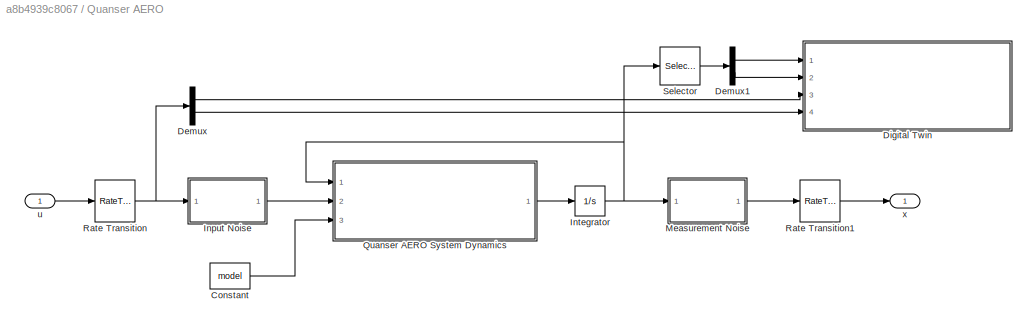
BLOCK [SubSystem] Quanser AERO
  Ports = [1, 1]
  RequestExecContextInheritance = off
  TreatAsAtomicUnit = on
BLOCK [Constant] Quanser AERO/Constant
  Value = model
BLOCK [Demux] Quanser AERO/Demux
  Outputs = 2
  Ports = [1, 2]
BLOCK [Demux] Quanser AERO/Demux1
  Outputs = 2
  Ports = [1, 2]
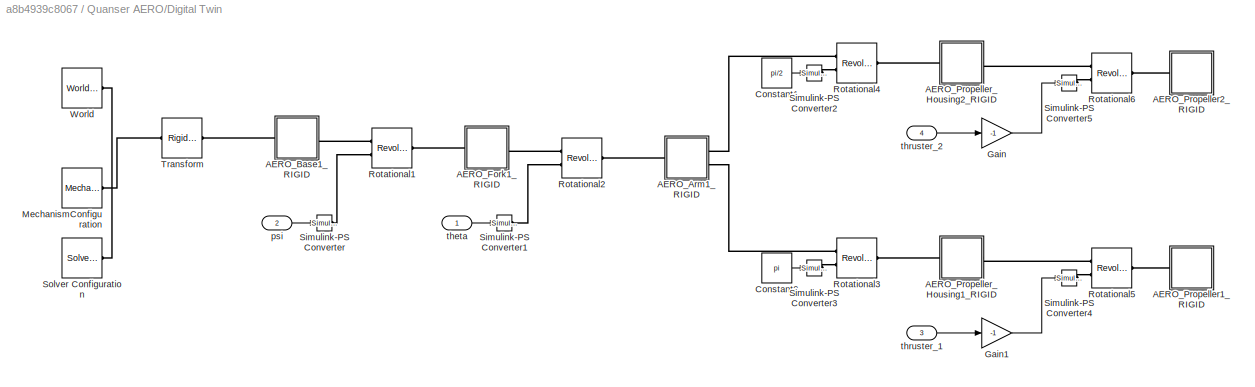
BLOCK [SubSystem] Quanser AERO/Digital Twin
  Ports = [4]
  RequestExecContextInheritance = off
BLOCK [SubSystem] Quanser AERO/Digital Twin/AERO_Arm1_RIGID
  Ports = [0, 0, 0, 0, 0, 1, 2]
  RequestExecContextInheritance = off
BLOCK [PMIOPort] Quanser AERO/Digital Twin/AERO_Arm1_RIGID/F
  Side = Left
BLOCK [PMIOPort] Quanser AERO/Digital Twin/AERO_Arm1_RIGID/F1
  Port = 3
  Side = Right
BLOCK [PMIOPort] Quanser AERO/Digital Twin/AERO_Arm1_RIGID/F2
  Port = 2
  Side = Right
BLOCK [Reference] Quanser AERO/Digital Twin/AERO_Arm1_RIGID/ReferenceFrame  REF=sm_lib/Frames and
Transforms/Reference
Frame
  Ports = [0, 0, 0, 0, 0, 0, 1]
  SourceBlock = sm_lib/Frames and\nTransforms/Reference\nFrame
  SourceProductBaseCode = MS
  SourceType = Reference\nFrame
BLOCK [Reference] Quanser AERO/Digital Twin/AERO_Arm1_RIGID/Solid  REF=sm_lib/Body Elements/File Solid
  Ports = [0, 0, 0, 0, 0, 0, 1]
  SourceBlock = sm_lib/Body Elements/File Solid
  SourceProductBaseCode = MS
  SourceType = File Solid
BLOCK [Reference] Quanser AERO/Digital Twin/AERO_Arm1_RIGID/Transform  REF=sm_lib/Frames and
Transforms/Rigid
Transform
  Ports = [0, 0, 0, 0, 0, 1, 1]
  SourceBlock = sm_lib/Frames and\nTransforms/Rigid\nTransform
  SourceProductBaseCode = MS
  SourceType = Rigid\nTransform
BLOCK [Reference] Quanser AERO/Digital Twin/AERO_Arm1_RIGID/Transform1  REF=sm_lib/Frames and
Transforms/Rigid
Transform
  Ports = [0, 0, 0, 0, 0, 1, 1]
  SourceBlock = sm_lib/Frames and\nTransforms/Rigid\nTransform
  SourceProductBaseCode = MS
  SourceType = Rigid\nTransform
BLOCK [Reference] Quanser AERO/Digital Twin/AERO_Arm1_RIGID/Transform2  REF=sm_lib/Frames and
Transforms/Rigid
Transform
  Ports = [0, 0, 0, 0, 0, 1, 1]
  SourceBlock = sm_lib/Frames and\nTransforms/Rigid\nTransform
  SourceProductBaseCode = MS
  SourceType = Rigid\nTransform
BLOCK [SubSystem] Quanser AERO/Digital Twin/AERO_Base1_RIGID
  Ports = [0, 0, 0, 0, 0, 1, 1]
  RequestExecContextInheritance = off
BLOCK [PMIOPort] Quanser AERO/Digital Twin/AERO_Base1_RIGID/F
  Port = 2
  Side = Right
BLOCK [PMIOPort] Quanser AERO/Digital Twin/AERO_Base1_RIGID/F1
  Side = Left
BLOCK [Reference] Quanser AERO/Digital Twin/AERO_Base1_RIGID/ReferenceFrame  REF=sm_lib/Frames and
Transforms/Reference
Frame
  Ports = [0, 0, 0, 0, 0, 0, 1]
  SourceBlock = sm_lib/Frames and\nTransforms/Reference\nFrame
  SourceProductBaseCode = MS
  SourceType = Reference\nFrame
BLOCK [Reference] Quanser AERO/Digital Twin/AERO_Base1_RIGID/Solid  REF=sm_lib/Body Elements/File Solid
  Ports = [0, 0, 0, 0, 0, 0, 1]
  SourceBlock = sm_lib/Body Elements/File Solid
  SourceProductBaseCode = MS
  SourceType = File Solid
BLOCK [Reference] Quanser AERO/Digital Twin/AERO_Base1_RIGID/Transform  REF=sm_lib/Frames and
Transforms/Rigid
Transform
  Ports = [0, 0, 0, 0, 0, 1, 1]
  SourceBlock = sm_lib/Frames and\nTransforms/Rigid\nTransform
  SourceProductBaseCode = MS
  SourceType = Rigid\nTransform
BLOCK [SubSystem] Quanser AERO/Digital Twin/AERO_Fork1_RIGID
  Ports = [0, 0, 0, 0, 0, 1, 1]
  RequestExecContextInheritance = off
BLOCK [PMIOPort] Quanser AERO/Digital Twin/AERO_Fork1_RIGID/F
  Port = 2
  Side = Right
BLOCK [PMIOPort] Quanser AERO/Digital Twin/AERO_Fork1_RIGID/F1
  Side = Left
BLOCK [Reference] Quanser AERO/Digital Twin/AERO_Fork1_RIGID/ReferenceFrame  REF=sm_lib/Frames and
Transforms/Reference
Frame
  Ports = [0, 0, 0, 0, 0, 0, 1]
  SourceBlock = sm_lib/Frames and\nTransforms/Reference\nFrame
  SourceProductBaseCode = MS
  SourceType = Reference\nFrame
BLOCK [Reference] Quanser AERO/Digital Twin/AERO_Fork1_RIGID/Solid  REF=sm_lib/Body Elements/File Solid
  Ports = [0, 0, 0, 0, 0, 0, 1]
  SourceBlock = sm_lib/Body Elements/File Solid
  SourceProductBaseCode = MS
  SourceType = File Solid
BLOCK [Reference] Quanser AERO/Digital Twin/AERO_Fork1_RIGID/Transform  REF=sm_lib/Frames and
Transforms/Rigid
Transform
  Ports = [0, 0, 0, 0, 0, 1, 1]
  SourceBlock = sm_lib/Frames and\nTransforms/Rigid\nTransform
  SourceProductBaseCode = MS
  SourceType = Rigid\nTransform
BLOCK [Reference] Quanser AERO/Digital Twin/AERO_Fork1_RIGID/Transform1  REF=sm_lib/Frames and
Transforms/Rigid
Transform
  Ports = [0, 0, 0, 0, 0, 1, 1]
  SourceBlock = sm_lib/Frames and\nTransforms/Rigid\nTransform
  SourceProductBaseCode = MS
  SourceType = Rigid\nTransform
BLOCK [SubSystem] Quanser AERO/Digital Twin/AERO_Propeller1_RIGID
  Ports = [0, 0, 0, 0, 0, 1]
  RequestExecContextInheritance = off
BLOCK [PMIOPort] Quanser AERO/Digital Twin/AERO_Propeller1_RIGID/F
  Side = Left
BLOCK [Reference] Quanser AERO/Digital Twin/AERO_Propeller1_RIGID/ReferenceFrame  REF=sm_lib/Frames and
Transforms/Reference
Frame
  Ports = [0, 0, 0, 0, 0, 0, 1]
  SourceBlock = sm_lib/Frames and\nTransforms/Reference\nFrame
  SourceProductBaseCode = MS
  SourceType = Reference\nFrame
BLOCK [Reference] Quanser AERO/Digital Twin/AERO_Propeller1_RIGID/Solid  REF=sm_lib/Body Elements/File Solid
  Ports = [0, 0, 0, 0, 0, 0, 1]
  SourceBlock = sm_lib/Body Elements/File Solid
  SourceProductBaseCode = MS
  SourceType = File Solid
BLOCK [Reference] Quanser AERO/Digital Twin/AERO_Propeller1_RIGID/Transform  REF=sm_lib/Frames and
Transforms/Rigid
Transform
  Ports = [0, 0, 0, 0, 0, 1, 1]
  SourceBlock = sm_lib/Frames and\nTransforms/Rigid\nTransform
  SourceProductBaseCode = MS
  SourceType = Rigid\nTransform
BLOCK [SubSystem] Quanser AERO/Digital Twin/AERO_Propeller2_RIGID
  Ports = [0, 0, 0, 0, 0, 1]
  RequestExecContextInheritance = off
BLOCK [PMIOPort] Quanser AERO/Digital Twin/AERO_Propeller2_RIGID/F
  Side = Left
BLOCK [Reference] Quanser AERO/Digital Twin/AERO_Propeller2_RIGID/ReferenceFrame  REF=sm_lib/Frames and
Transforms/Reference
Frame
  Ports = [0, 0, 0, 0, 0, 0, 1]
  SourceBlock = sm_lib/Frames and\nTransforms/Reference\nFrame
  SourceProductBaseCode = MS
  SourceType = Reference\nFrame
BLOCK [Reference] Quanser AERO/Digital Twin/AERO_Propeller2_RIGID/Solid  REF=sm_lib/Body Elements/File Solid
  Ports = [0, 0, 0, 0, 0, 0, 1]
  SourceBlock = sm_lib/Body Elements/File Solid
  SourceProductBaseCode = MS
  SourceType = File Solid
BLOCK [Reference] Quanser AERO/Digital Twin/AERO_Propeller2_RIGID/Transform  REF=sm_lib/Frames and
Transforms/Rigid
Transform
  Ports = [0, 0, 0, 0, 0, 1, 1]
  SourceBlock = sm_lib/Frames and\nTransforms/Rigid\nTransform
  SourceProductBaseCode = MS
  SourceType = Rigid\nTransform
BLOCK [SubSystem] Quanser AERO/Digital Twin/AERO_Propeller_Housing1_RIGID
  Ports = [0, 0, 0, 0, 0, 1, 1]
  RequestExecContextInheritance = off
BLOCK [PMIOPort] Quanser AERO/Digital Twin/AERO_Propeller_Housing1_RIGID/F
  Side = Left
BLOCK [PMIOPort] Quanser AERO/Digital Twin/AERO_Propeller_Housing1_RIGID/F1
  Port = 2
  Side = Right
BLOCK [Reference] Quanser AERO/Digital Twin/AERO_Propeller_Housing1_RIGID/ReferenceFrame  REF=sm_lib/Frames and
Transforms/Reference
Frame
  Ports = [0, 0, 0, 0, 0, 0, 1]
  SourceBlock = sm_lib/Frames and\nTransforms/Reference\nFrame
  SourceProductBaseCode = MS
  SourceType = Reference\nFrame
BLOCK [Reference] Quanser AERO/Digital Twin/AERO_Propeller_Housing1_RIGID/Solid  REF=sm_lib/Body Elements/File Solid
  Ports = [0, 0, 0, 0, 0, 0, 1]
  SourceBlock = sm_lib/Body Elements/File Solid
  SourceProductBaseCode = MS
  SourceType = File Solid
BLOCK [Reference] Quanser AERO/Digital Twin/AERO_Propeller_Housing1_RIGID/Transform  REF=sm_lib/Frames and
Transforms/Rigid
Transform
  Ports = [0, 0, 0, 0, 0, 1, 1]
  SourceBlock = sm_lib/Frames and\nTransforms/Rigid\nTransform
  SourceProductBaseCode = MS
  SourceType = Rigid\nTransform
BLOCK [Reference] Quanser AERO/Digital Twin/AERO_Propeller_Housing1_RIGID/Transform1  REF=sm_lib/Frames and
Transforms/Rigid
Transform
  Ports = [0, 0, 0, 0, 0, 1, 1]
  SourceBlock = sm_lib/Frames and\nTransforms/Rigid\nTransform
  SourceProductBaseCode = MS
  SourceType = Rigid\nTransform
BLOCK [SubSystem] Quanser AERO/Digital Twin/AERO_Propeller_Housing2_RIGID
  Ports = [0, 0, 0, 0, 0, 1, 1]
  RequestExecContextInheritance = off
BLOCK [PMIOPort] Quanser AERO/Digital Twin/AERO_Propeller_Housing2_RIGID/F
  Side = Left
BLOCK [PMIOPort] Quanser AERO/Digital Twin/AERO_Propeller_Housing2_RIGID/F1
  Port = 2
  Side = Right
BLOCK [Reference] Quanser AERO/Digital Twin/AERO_Propeller_Housing2_RIGID/ReferenceFrame  REF=sm_lib/Frames and
Transforms/Reference
Frame
  Ports = [0, 0, 0, 0, 0, 0, 1]
  SourceBlock = sm_lib/Frames and\nTransforms/Reference\nFrame
  SourceProductBaseCode = MS
  SourceType = Reference\nFrame
BLOCK [Reference] Quanser AERO/Digital Twin/AERO_Propeller_Housing2_RIGID/Solid  REF=sm_lib/Body Elements/File Solid
  Ports = [0, 0, 0, 0, 0, 0, 1]
  SourceBlock = sm_lib/Body Elements/File Solid
  SourceProductBaseCode = MS
  SourceType = File Solid
BLOCK [Reference] Quanser AERO/Digital Twin/AERO_Propeller_Housing2_RIGID/Transform  REF=sm_lib/Frames and
Transforms/Rigid
Transform
  Ports = [0, 0, 0, 0, 0, 1, 1]
  SourceBlock = sm_lib/Frames and\nTransforms/Rigid\nTransform
  SourceProductBaseCode = MS
  SourceType = Rigid\nTransform
BLOCK [Reference] Quanser AERO/Digital Twin/AERO_Propeller_Housing2_RIGID/Transform1  REF=sm_lib/Frames and
Transforms/Rigid
Transform
  Ports = [0, 0, 0, 0, 0, 1, 1]
  SourceBlock = sm_lib/Frames and\nTransforms/Rigid\nTransform
  SourceProductBaseCode = MS
  SourceType = Rigid\nTransform
BLOCK [Constant] Quanser AERO/Digital Twin/Constant1
  Value = pi/2
BLOCK [Constant] Quanser AERO/Digital Twin/Constant2
  Value = pi
BLOCK [Gain] Quanser AERO/Digital Twin/Gain
  Gain = -1
BLOCK [Gain] Quanser AERO/Digital Twin/Gain1
  Gain = -1
BLOCK [Reference] Quanser AERO/Digital Twin/MechanismConfiguration  REF=sm_lib/Utilities/Mechanism
Configuration
  Ports = [0, 0, 0, 0, 0, 0, 1]
  SourceBlock = sm_lib/Utilities/Mechanism\nConfiguration
  SourceProductBaseCode = MS
  SourceType = Mechanism\nConfiguration
BLOCK [Reference] Quanser AERO/Digital Twin/Rotational1  REF=sm_lib/Joints/Revolute Joint
  Ports = [0, 0, 0, 0, 0, 2, 1]
  SourceBlock = sm_lib/Joints/Revolute Joint
  SourceProductBaseCode = MS
  SourceType = Revolute Joint
BLOCK [Reference] Quanser AERO/Digital Twin/Rotational2  REF=sm_lib/Joints/Revolute Joint
  Ports = [0, 0, 0, 0, 0, 2, 1]
  SourceBlock = sm_lib/Joints/Revolute Joint
  SourceProductBaseCode = MS
  SourceType = Revolute Joint
BLOCK [Reference] Quanser AERO/Digital Twin/Rotational3  REF=sm_lib/Joints/Revolute Joint
  Ports = [0, 0, 0, 0, 0, 2, 1]
  SourceBlock = sm_lib/Joints/Revolute Joint
  SourceProductBaseCode = MS
  SourceType = Revolute Joint
BLOCK [Reference] Quanser AERO/Digital Twin/Rotational4  REF=sm_lib/Joints/Revolute Joint
  Ports = [0, 0, 0, 0, 0, 2, 1]
  SourceBlock = sm_lib/Joints/Revolute Joint
  SourceProductBaseCode = MS
  SourceType = Revolute Joint
BLOCK [Reference] Quanser AERO/Digital Twin/Rotational5  REF=sm_lib/Joints/Revolute Joint
  Ports = [0, 0, 0, 0, 0, 2, 1]
  SourceBlock = sm_lib/Joints/Revolute Joint
  SourceProductBaseCode = MS
  SourceType = Revolute Joint
BLOCK [Reference] Quanser AERO/Digital Twin/Rotational6  REF=sm_lib/Joints/Revolute Joint
  Ports = [0, 0, 0, 0, 0, 2, 1]
  SourceBlock = sm_lib/Joints/Revolute Joint
  SourceProductBaseCode = MS
  SourceType = Revolute Joint
BLOCK [Reference] Quanser AERO/Digital Twin/Simulink-PS Converter  REF=nesl_utility/Simulink-PS
Converter
  Ports = [1, 0, 0, 0, 0, 0, 1]
  SourceBlock = nesl_utility/Simulink-PS\nConverter
  SourceProductBaseCode = PW,SS
  SourceType = Simulink-PS\nConverter
BLOCK [Reference] Quanser AERO/Digital Twin/Simulink-PS Converter1  REF=nesl_utility/Simulink-PS
Converter
  Ports = [1, 0, 0, 0, 0, 0, 1]
  SourceBlock = nesl_utility/Simulink-PS\nConverter
  SourceProductBaseCode = PW,SS
  SourceType = Simulink-PS\nConverter
BLOCK [Reference] Quanser AERO/Digital Twin/Simulink-PS Converter2  REF=nesl_utility/Simulink-PS
Converter
  Ports = [1, 0, 0, 0, 0, 0, 1]
  SourceBlock = nesl_utility/Simulink-PS\nConverter
  SourceProductBaseCode = PW,SS
  SourceType = Simulink-PS\nConverter
BLOCK [Reference] Quanser AERO/Digital Twin/Simulink-PS Converter3  REF=nesl_utility/Simulink-PS
Converter
  Ports = [1, 0, 0, 0, 0, 0, 1]
  SourceBlock = nesl_utility/Simulink-PS\nConverter
  SourceProductBaseCode = PW,SS
  SourceType = Simulink-PS\nConverter
BLOCK [Reference] Quanser AERO/Digital Twin/Simulink-PS Converter4  REF=nesl_utility/Simulink-PS
Converter
  Ports = [1, 0, 0, 0, 0, 0, 1]
  SourceBlock = nesl_utility/Simulink-PS\nConverter
  SourceProductBaseCode = PW,SS
  SourceType = Simulink-PS\nConverter
BLOCK [Reference] Quanser AERO/Digital Twin/Simulink-PS Converter5  REF=nesl_utility/Simulink-PS
Converter
  Ports = [1, 0, 0, 0, 0, 0, 1]
  SourceBlock = nesl_utility/Simulink-PS\nConverter
  SourceProductBaseCode = PW,SS
  SourceType = Simulink-PS\nConverter
BLOCK [Reference] Quanser AERO/Digital Twin/Solver Configuration  REF=nesl_utility/Solver
Configuration
  Ports = [0, 0, 0, 0, 0, 0, 1]
  SourceBlock = nesl_utility/Solver\nConfiguration
  SourceProductBaseCode = PW,SS
  SourceType = Solver\nConfiguration
BLOCK [Reference] Quanser AERO/Digital Twin/Transform  REF=sm_lib/Frames and
Transforms/Rigid
Transform
  Ports = [0, 0, 0, 0, 0, 1, 1]
  SourceBlock = sm_lib/Frames and\nTransforms/Rigid\nTransform
  SourceProductBaseCode = MS
  SourceType = Rigid\nTransform
BLOCK [Reference] Quanser AERO/Digital Twin/World  REF=sm_lib/Frames and
Transforms/World Frame
  Ports = [0, 0, 0, 0, 0, 0, 1]
  SourceBlock = sm_lib/Frames and\nTransforms/World Frame
  SourceProductBaseCode = MS
  SourceType = World Frame
BLOCK [Inport] Quanser AERO/Digital Twin/psi
  Port = 2
BLOCK [Inport] Quanser AERO/Digital Twin/theta
BLOCK [Inport] Quanser AERO/Digital Twin/thruster_1
  Port = 3
BLOCK [Inport] Quanser AERO/Digital Twin/thruster_2
  Port = 4
BLOCK [SubSystem] Quanser AERO/Input Noise
  Ports = [1, 1]
  RequestExecContextInheritance = off
  TreatAsAtomicUnit = on
BLOCK [Demux] Quanser AERO/Input Noise/Demux
  Outputs = 2
  Ports = [1, 2]
BLOCK [Reference] Quanser AERO/Input Noise/Motor 0 Noise  REF=simulink/Sources/Band-Limited
White Noise
  Ports = [0, 1]
  SourceBlock = simulink/Sources/Band-Limited\nWhite Noise
  SourceProductBaseCode = SL
  SourceType = Band-Limited White Noise.
BLOCK [Reference] Quanser AERO/Input Noise/Motor 1 Noise  REF=simulink/Sources/Band-Limited
White Noise
  Ports = [0, 1]
  SourceBlock = simulink/Sources/Band-Limited\nWhite Noise
  SourceProductBaseCode = SL
  SourceType = Band-Limited White Noise.
BLOCK [Mux] Quanser AERO/Input Noise/Mux
  DisplayOption = bar
  Inputs = 2
  Ports = [2, 1]
BLOCK [Sum] Quanser AERO/Input Noise/Sum
  Inputs = |++
  Ports = [2, 1]
BLOCK [Sum] Quanser AERO/Input Noise/Sum1
  Inputs = ++|
  Ports = [2, 1]
BLOCK [Inport] Quanser AERO/Input Noise/u
BLOCK [Outport] Quanser AERO/Input Noise/u_noise
  VectorParamsAs1DForOutWhenUnconnected = off
BLOCK [Integrator] Quanser AERO/Integrator
  InitialCondition = [ini_cond.theta; ini_cond.theta_dot; ini_cond.psi; ini_cond.psi_dot]
  Ports = [1, 1]
BLOCK [SubSystem] Quanser AERO/Measurement Noise
  Ports = [1, 1]
  RequestExecContextInheritance = off
  TreatAsAtomicUnit = on
BLOCK [Demux] Quanser AERO/Measurement Noise/Demux
  Ports = [1, 4]
BLOCK [Mux] Quanser AERO/Measurement Noise/Mux
  DisplayOption = bar
  Ports = [4, 1]
BLOCK [Reference] Quanser AERO/Measurement Noise/Pitch Sensor Noise  REF=simulink/Sources/Band-Limited
White Noise
  Ports = [0, 1]
  SourceBlock = simulink/Sources/Band-Limited\nWhite Noise
  SourceProductBaseCode = SL
  SourceType = Band-Limited White Noise.
BLOCK [Reference] Quanser AERO/Measurement Noise/Pitch Velocity Sensor Noise  REF=simulink/Sources/Band-Limited
White Noise
  Ports = [0, 1]
  SourceBlock = simulink/Sources/Band-Limited\nWhite Noise
  SourceProductBaseCode = SL
  SourceType = Band-Limited White Noise.
BLOCK [Sum] Quanser AERO/Measurement Noise/Sum
  Inputs = |++
  Ports = [2, 1]
BLOCK [Sum] Quanser AERO/Measurement Noise/Sum1
  Inputs = |++
  Ports = [2, 1]
BLOCK [Sum] Quanser AERO/Measurement Noise/Sum2
  Inputs = ++|
  Ports = [2, 1]
BLOCK [Sum] Quanser AERO/Measurement Noise/Sum3
  Inputs = ++|
  Ports = [2, 1]
BLOCK [Reference] Quanser AERO/Measurement Noise/Yaw Sensor Noise  REF=simulink/Sources/Band-Limited
White Noise
  Ports = [0, 1]
  SourceBlock = simulink/Sources/Band-Limited\nWhite Noise
  SourceProductBaseCode = SL
  SourceType = Band-Limited White Noise.
BLOCK [Reference] Quanser AERO/Measurement Noise/Yaw Velocity Sensor Noise  REF=simulink/Sources/Band-Limited
White Noise
  Ports = [0, 1]
  SourceBlock = simulink/Sources/Band-Limited\nWhite Noise
  SourceProductBaseCode = SL
  SourceType = Band-Limited White Noise.
BLOCK [Inport] Quanser AERO/Measurement Noise/x
BLOCK [Outport] Quanser AERO/Measurement Noise/x_noise
  VectorParamsAs1DForOutWhenUnconnected = off
BLOCK [ModelReference] Quanser AERO/Quanser AERO System Dynamics
  CopyOfModelProtected = on
  ModelNameDialog = Quanser_AERO_System_Dynamics
  ModelReferenceVersion = 1.6
  Ports = [3, 1]
BLOCK [RateTransition] Quanser AERO/Rate Transition
  OutPortSampleTime = ts
BLOCK [RateTransition] Quanser AERO/Rate Transition1
  InitialCondition = [ini_cond.theta; ini_cond.theta_dot; ini_cond.psi; ini_cond.psi_dot]
  OutPortSampleTime = ts
BLOCK [Selector] Quanser AERO/Selector
  IndexOptions = Index vector (dialog)
  Indices = [1 3]
  InputPortWidth = 4
  OutputSizes = 1
  Ports = [1, 1]
BLOCK [Inport] Quanser AERO/u
BLOCK [Outport] Quanser AERO/x
  VectorParamsAs1DForOutWhenUnconnected = off
BLOCK [Scope] Yaw
  Floating = off
  NumInputPorts = 1
  Ports = [1]
  ScopeSpecificationString = Simulink.scopes.TimeScopeBlockCfg('CurrentConfiguration', extmgr.ConfigurationSet(extmgr.Configuration('Core','General UI',true),extmgr.Configuration('Core','Source UI',true),extmgr.Configuration('Sources','WiredSimulink',true,'DataLoggingVariableName','ScopeData3'),extmgr.Configuration('Visuals','Time Domain',true,'SerializedDisplays',{struct('MinYLimReal','-119.72157','MaxYLimReal','1077.28755',...<+1585ch>
BLOCK [Scope] Yaw Angular Velocity
  Floating = off
  NumInputPorts = 1
  Ports = [1]
  ScopeSpecificationString = Simulink.scopes.TimeScopeBlockCfg('CurrentConfiguration', extmgr.ConfigurationSet(extmgr.Configuration('Core','General UI',true),extmgr.Configuration('Core','Source UI',true),extmgr.Configuration('Sources','WiredSimulink',true),extmgr.Configuration('Visuals','Time Domain',true,'SerializedDisplays',{struct('MinYLimReal','-2.39611','MaxYLimReal','2.02297','YLabelReal','','MinYLimMag','0.00000','MaxY...<+1528ch>
BLOCK [Gain] rad2deg
  Gain = 180/pi
ANNOTATION (root): Quanser AERO Simulation Model The simulation parameter file 'quanser_AERO_sim_params.m' will be automatically run, please ensure this file is in the same directory as this Simulink model. The Quanser AERO can either be run in a 1DOF or 2DOF configuration by adjusting the parameter file. Last updated 17-07-21 by Vincent Liu (<email>)
ANNOTATION (root): If you want to simulate a closed-loop response, insert your controller below.
LINE Demux:1 -> Pitch:1
LINE Demux:2 -> Pitch Angular Velocity:1
LINE Demux:3 -> Yaw:1
LINE Demux:4 -> Yaw Angular Velocity:1
LINE Motor 0 Step Input:1 -> Mux:1
LINE Motor 1 Step Input:1 -> Mux:2
LINE Mux:1 -> Quanser AERO:1
LINE Quanser AERO/Constant:1 -> Quanser AERO/Quanser AERO System Dynamics:3
LINE Quanser AERO/Demux1:1 -> Quanser AERO/Digital Twin:1
LINE Quanser AERO/Demux1:2 -> Quanser AERO/Digital Twin:2
LINE Quanser AERO/Demux:1 -> Quanser AERO/Digital Twin:3
LINE Quanser AERO/Demux:2 -> Quanser AERO/Digital Twin:4
LINE Quanser AERO/Digital Twin/Constant1:1 -> Quanser AERO/Digital Twin/Simulink-PS Converter2:1
LINE Quanser AERO/Digital Twin/Constant2:1 -> Quanser AERO/Digital Twin/Simulink-PS Converter3:1
LINE Quanser AERO/Digital Twin/Gain1:1 -> Quanser AERO/Digital Twin/Simulink-PS Converter4:1
LINE Quanser AERO/Digital Twin/Gain:1 -> Quanser AERO/Digital Twin/Simulink-PS Converter5:1
LINE Quanser AERO/Digital Twin/psi:1 -> Quanser AERO/Digital Twin/Simulink-PS Converter:1
LINE Quanser AERO/Digital Twin/theta:1 -> Quanser AERO/Digital Twin/Simulink-PS Converter1:1
LINE Quanser AERO/Digital Twin/thruster_1:1 -> Quanser AERO/Digital Twin/Gain1:1
LINE Quanser AERO/Digital Twin/thruster_2:1 -> Quanser AERO/Digital Twin/Gain:1
LINE Quanser AERO/Input Noise/Demux:1 -> Quanser AERO/Input Noise/Sum1:2
LINE Quanser AERO/Input Noise/Demux:2 -> Quanser AERO/Input Noise/Sum:1
LINE Quanser AERO/Input Noise/Motor 0 Noise:1 -> Quanser AERO/Input Noise/Sum1:1
LINE Quanser AERO/Input Noise/Motor 1 Noise:1 -> Quanser AERO/Input Noise/Sum:2
LINE Quanser AERO/Input Noise/Mux:1 -> Quanser AERO/Input Noise/u_noise:1
LINE Quanser AERO/Input Noise/Sum1:1 -> Quanser AERO/Input Noise/Mux:1
LINE Quanser AERO/Input Noise/Sum:1 -> Quanser AERO/Input Noise/Mux:2
LINE Quanser AERO/Input Noise/u:1 -> Quanser AERO/Input Noise/Demux:1
LINE Quanser AERO/Input Noise:1 -> Quanser AERO/Quanser AERO System Dynamics:2
NET Quanser AERO/Integrator:1 -> Quanser AERO/Measurement Noise:1, Quanser AERO/Quanser AERO System Dynamics:1, Quanser AERO/Selector:1
LINE Quanser AERO/Measurement Noise/Demux:1 -> Quanser AERO/Measurement Noise/Sum2:2
LINE Quanser AERO/Measurement Noise/Demux:2 -> Quanser AERO/Measurement Noise/Sum3:2
LINE Quanser AERO/Measurement Noise/Demux:3 -> Quanser AERO/Measurement Noise/Sum:1
LINE Quanser AERO/Measurement Noise/Demux:4 -> Quanser AERO/Measurement Noise/Sum1:1
LINE Quanser AERO/Measurement Noise/Mux:1 -> Quanser AERO/Measurement Noise/x_noise:1
LINE Quanser AERO/Measurement Noise/Pitch Sensor Noise:1 -> Quanser AERO/Measurement Noise/Sum2:1
LINE Quanser AERO/Measurement Noise/Pitch Velocity Sensor Noise:1 -> Quanser AERO/Measurement Noise/Sum3:1
LINE Quanser AERO/Measurement Noise/Sum1:1 -> Quanser AERO/Measurement Noise/Mux:4
LINE Quanser AERO/Measurement Noise/Sum2:1 -> Quanser AERO/Measurement Noise/Mux:1
LINE Quanser AERO/Measurement Noise/Sum3:1 -> Quanser AERO/Measurement Noise/Mux:2
LINE Quanser AERO/Measurement Noise/Sum:1 -> Quanser AERO/Measurement Noise/Mux:3
LINE Quanser AERO/Measurement Noise/Yaw Sensor Noise:1 -> Quanser AERO/Measurement Noise/Sum:2
LINE Quanser AERO/Measurement Noise/Yaw Velocity Sensor Noise:1 -> Quanser AERO/Measurement Noise/Sum1:2
LINE Quanser AERO/Measurement Noise/x:1 -> Quanser AERO/Measurement Noise/Demux:1
LINE Quanser AERO/Measurement Noise:1 -> Quanser AERO/Rate Transition1:1
LINE Quanser AERO/Quanser AERO System Dynamics:1 -> Quanser AERO/Integrator:1
LINE Quanser AERO/Rate Transition1:1 -> Quanser AERO/x:1
NET Quanser AERO/Rate Transition:1 -> Quanser AERO/Demux:1, Quanser AERO/Input Noise:1
LINE Quanser AERO/Selector:1 -> Quanser AERO/Demux1:1
LINE Quanser AERO/u:1 -> Quanser AERO/Rate Transition:1
LINE Quanser AERO:1 -> rad2deg:1
LINE rad2deg:1 -> Demux:1
PLINE Quanser AERO/Digital Twin/AERO_Arm1_RIGID/F1:RConn1 -- Quanser AERO/Digital Twin/AERO_Arm1_RIGID/Transform1:RConn1
PLINE Quanser AERO/Digital Twin/AERO_Arm1_RIGID/F2:RConn1 -- Quanser AERO/Digital Twin/AERO_Arm1_RIGID/Transform2:RConn1
PLINE Quanser AERO/Digital Twin/AERO_Arm1_RIGID/F:RConn1 -- Quanser AERO/Digital Twin/AERO_Arm1_RIGID/Transform:RConn1
PNET net1: Quanser AERO/Digital Twin/AERO_Arm1_RIGID/ReferenceFrame:RConn1 -- Quanser AERO/Digital Twin/AERO_Arm1_RIGID/Solid:RConn1 -- Quanser AERO/Digital Twin/AERO_Arm1_RIGID/Transform1:LConn1 -- Quanser AERO/Digital Twin/AERO_Arm1_RIGID/Transform2:LConn1 -- Quanser AERO/Digital Twin/AERO_Arm1_RIGID/Transform:LConn1
PLINE Quanser AERO/Digital Twin/AERO_Arm1_RIGID:LConn1 -- Quanser AERO/Digital Twin/Rotational2:RConn1
PLINE Quanser AERO/Digital Twin/AERO_Arm1_RIGID:RConn1 -- Quanser AERO/Digital Twin/Rotational4:LConn1
PLINE Quanser AERO/Digital Twin/AERO_Arm1_RIGID:RConn2 -- Quanser AERO/Digital Twin/Rotational3:LConn1
PNET net2: Quanser AERO/Digital Twin/AERO_Base1_RIGID/F1:RConn1 -- Quanser AERO/Digital Twin/AERO_Base1_RIGID/ReferenceFrame:RConn1 -- Quanser AERO/Digital Twin/AERO_Base1_RIGID/Solid:RConn1 -- Quanser AERO/Digital Twin/AERO_Base1_RIGID/Transform:LConn1
PLINE Quanser AERO/Digital Twin/AERO_Base1_RIGID/F:RConn1 -- Quanser AERO/Digital Twin/AERO_Base1_RIGID/Transform:RConn1
PLINE Quanser AERO/Digital Twin/AERO_Base1_RIGID:LConn1 -- Quanser AERO/Digital Twin/Transform:RConn1
PLINE Quanser AERO/Digital Twin/AERO_Base1_RIGID:RConn1 -- Quanser AERO/Digital Twin/Rotational1:LConn1
PLINE Quanser AERO/Digital Twin/AERO_Fork1_RIGID/F1:RConn1 -- Quanser AERO/Digital Twin/AERO_Fork1_RIGID/Transform1:RConn1
PLINE Quanser AERO/Digital Twin/AERO_Fork1_RIGID/F:RConn1 -- Quanser AERO/Digital Twin/AERO_Fork1_RIGID/Transform:RConn1
PNET net3: Quanser AERO/Digital Twin/AERO_Fork1_RIGID/ReferenceFrame:RConn1 -- Quanser AERO/Digital Twin/AERO_Fork1_RIGID/Solid:RConn1 -- Quanser AERO/Digital Twin/AERO_Fork1_RIGID/Transform1:LConn1 -- Quanser AERO/Digital Twin/AERO_Fork1_RIGID/Transform:LConn1
PLINE Quanser AERO/Digital Twin/AERO_Fork1_RIGID:LConn1 -- Quanser AERO/Digital Twin/Rotational1:RConn1
PLINE Quanser AERO/Digital Twin/AERO_Fork1_RIGID:RConn1 -- Quanser AERO/Digital Twin/Rotational2:LConn1
PLINE Quanser AERO/Digital Twin/AERO_Propeller1_RIGID/F:RConn1 -- Quanser AERO/Digital Twin/AERO_Propeller1_RIGID/Transform:RConn1
PNET net4: Quanser AERO/Digital Twin/AERO_Propeller1_RIGID/ReferenceFrame:RConn1 -- Quanser AERO/Digital Twin/AERO_Propeller1_RIGID/Solid:RConn1 -- Quanser AERO/Digital Twin/AERO_Propeller1_RIGID/Transform:LConn1
PLINE Quanser AERO/Digital Twin/AERO_Propeller1_RIGID:LConn1 -- Quanser AERO/Digital Twin/Rotational5:RConn1
PLINE Quanser AERO/Digital Twin/AERO_Propeller2_RIGID/F:RConn1 -- Quanser AERO/Digital Twin/AERO_Propeller2_RIGID/Transform:RConn1
PNET net5: Quanser AERO/Digital Twin/AERO_Propeller2_RIGID/ReferenceFrame:RConn1 -- Quanser AERO/Digital Twin/AERO_Propeller2_RIGID/Solid:RConn1 -- Quanser AERO/Digital Twin/AERO_Propeller2_RIGID/Transform:LConn1
PLINE Quanser AERO/Digital Twin/AERO_Propeller2_RIGID:LConn1 -- Quanser AERO/Digital Twin/Rotational6:RConn1
PLINE Quanser AERO/Digital Twin/AERO_Propeller_Housing1_RIGID/F1:RConn1 -- Quanser AERO/Digital Twin/AERO_Propeller_Housing1_RIGID/Transform1:RConn1
PLINE Quanser AERO/Digital Twin/AERO_Propeller_Housing1_RIGID/F:RConn1 -- Quanser AERO/Digital Twin/AERO_Propeller_Housing1_RIGID/Transform:RConn1
PNET net6: Quanser AERO/Digital Twin/AERO_Propeller_Housing1_RIGID/ReferenceFrame:RConn1 -- Quanser AERO/Digital Twin/AERO_Propeller_Housing1_RIGID/Solid:RConn1 -- Quanser AERO/Digital Twin/AERO_Propeller_Housing1_RIGID/Transform1:LConn1 -- Quanser AERO/Digital Twin/AERO_Propeller_Housing1_RIGID/Transform:LConn1
PLINE Quanser AERO/Digital Twin/AERO_Propeller_Housing1_RIGID:LConn1 -- Quanser AERO/Digital Twin/Rotational3:RConn1
PLINE Quanser AERO/Digital Twin/AERO_Propeller_Housing1_RIGID:RConn1 -- Quanser AERO/Digital Twin/Rotational5:LConn1
PLINE Quanser AERO/Digital Twin/AERO_Propeller_Housing2_RIGID/F1:RConn1 -- Quanser AERO/Digital Twin/AERO_Propeller_Housing2_RIGID/Transform1:RConn1
PLINE Quanser AERO/Digital Twin/AERO_Propeller_Housing2_RIGID/F:RConn1 -- Quanser AERO/Digital Twin/AERO_Propeller_Housing2_RIGID/Transform:RConn1
PNET net7: Quanser AERO/Digital Twin/AERO_Propeller_Housing2_RIGID/ReferenceFrame:RConn1 -- Quanser AERO/Digital Twin/AERO_Propeller_Housing2_RIGID/Solid:RConn1 -- Quanser AERO/Digital Twin/AERO_Propeller_Housing2_RIGID/Transform1:LConn1 -- Quanser AERO/Digital Twin/AERO_Propeller_Housing2_RIGID/Transform:LConn1
PLINE Quanser AERO/Digital Twin/AERO_Propeller_Housing2_RIGID:LConn1 -- Quanser AERO/Digital Twin/Rotational4:RConn1
PLINE Quanser AERO/Digital Twin/AERO_Propeller_Housing2_RIGID:RConn1 -- Quanser AERO/Digital Twin/Rotational6:LConn1
PNET net8: Quanser AERO/Digital Twin/MechanismConfiguration:RConn1 -- Quanser AERO/Digital Twin/Solver Configuration:RConn1 -- Quanser AERO/Digital Twin/Transform:LConn1 -- Quanser AERO/Digital Twin/World:RConn1
PLINE Quanser AERO/Digital Twin/Rotational1:LConn2 -- Quanser AERO/Digital Twin/Simulink-PS Converter:RConn1
PLINE Quanser AERO/Digital Twin/Rotational2:LConn2 -- Quanser AERO/Digital Twin/Simulink-PS Converter1:RConn1
PLINE Quanser AERO/Digital Twin/Rotational3:LConn2 -- Quanser AERO/Digital Twin/Simulink-PS Converter3:RConn1
PLINE Quanser AERO/Digital Twin/Rotational4:LConn2 -- Quanser AERO/Digital Twin/Simulink-PS Converter2:RConn1
PLINE Quanser AERO/Digital Twin/Rotational5:LConn2 -- Quanser AERO/Digital Twin/Simulink-PS Converter4:RConn1
PLINE Quanser AERO/Digital Twin/Rotational6:LConn2 -- Quanser AERO/Digital Twin/Simulink-PS Converter5:RConn1
note: NET lines group one-source signal fan-out (src -> all destinations, sorted); 1:1 wires keep LINE; PNET lines group multi-terminal physical nets as a canonical sorted terminal list (undirected conserving connections); 2-terminal nets keep the pairwise PLINE form
